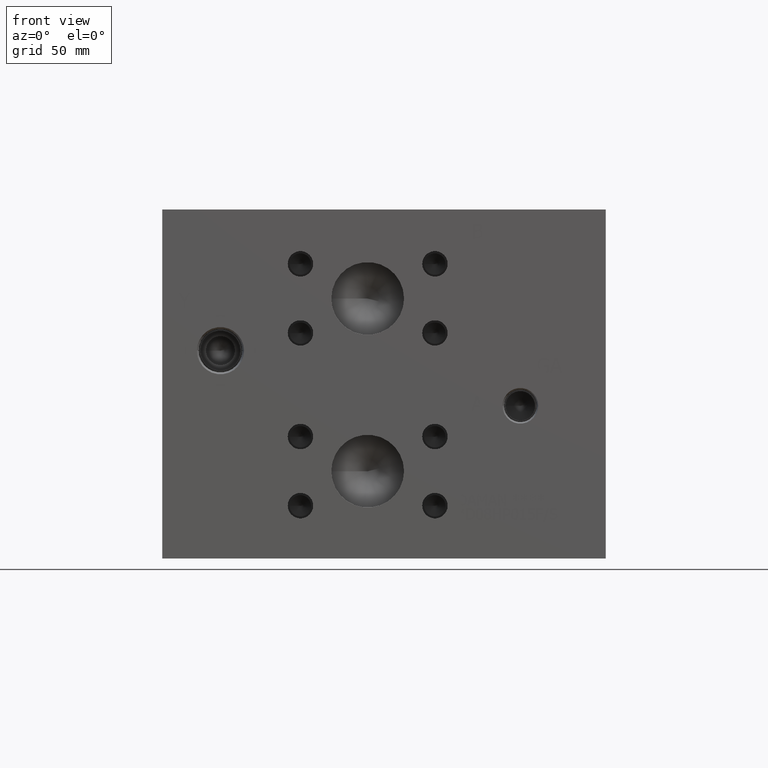
[diagram: clean part render]
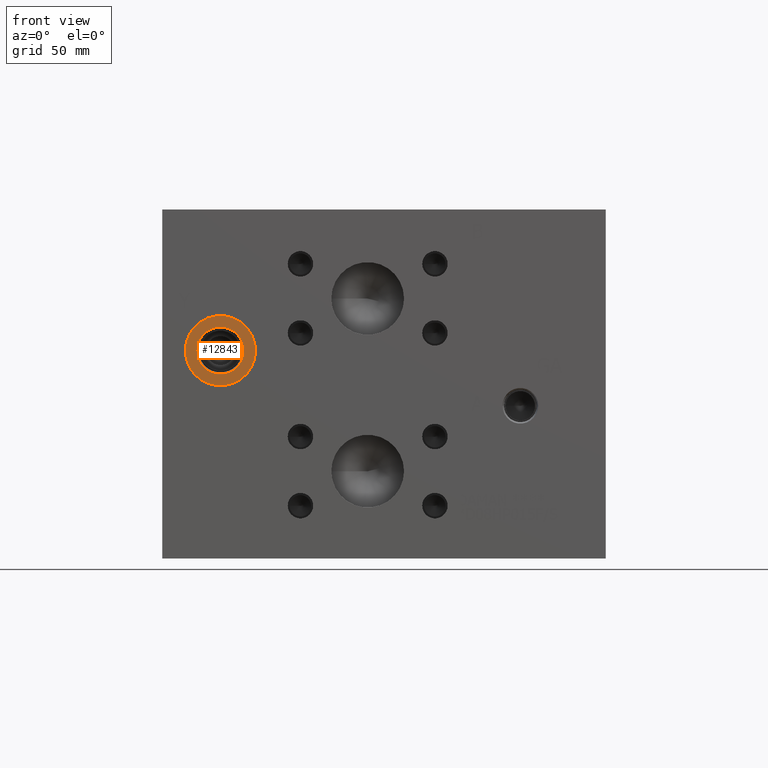
[diagram: same view with one face highlighted and labeled with its STEP entity id]
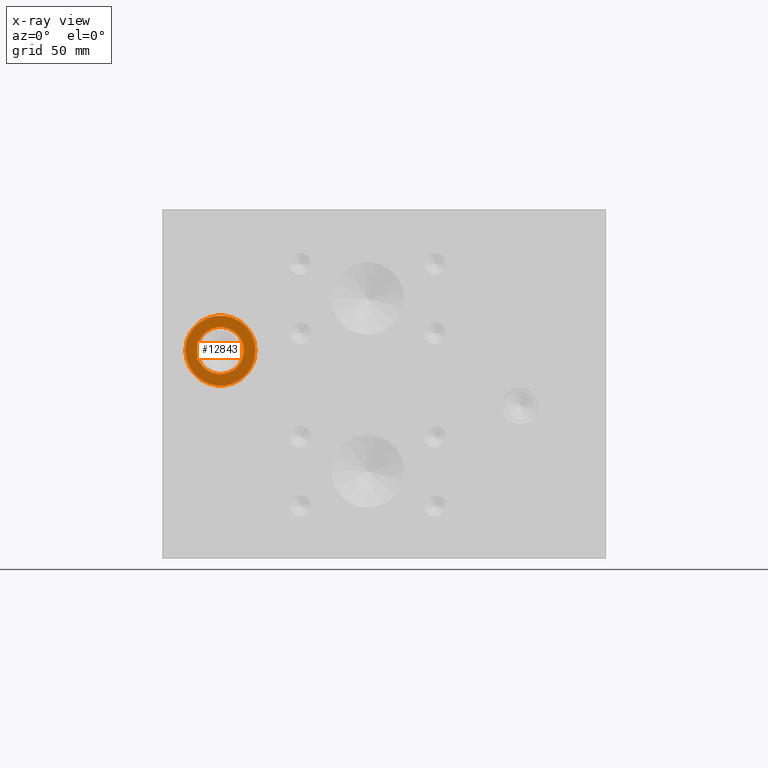
[diagram: x-ray of the same camera — body ghosted, the highlighted face saturated]
A machine part, front view. The second image highlights one B-rep face of the part: STEP entity #12843.
The next image is the same camera in x-ray: the body ghosted, the highlighted face saturated — about 0% of this face is hidden behind the body in this view.
In plain terms, the highlighted planar face has unit normal (0, 1, 0).
Its self-contained STEP definition (entity closure, byte-faithful):
#274=CIRCLE('',#13493,15.3162);
#275=CIRCLE('',#13494,15.3162);
#276=CIRCLE('',#13496,10.2997);
#277=CIRCLE('',#13497,10.2997);
#606=FACE_BOUND('',#2327,.T.);
#1569=FACE_OUTER_BOUND('',#2326,.T.);
#2326=EDGE_LOOP('',(#10644,#10645));
#2327=EDGE_LOOP('',(#10646,#10647));
#5845=VERTEX_POINT('',#21543);
#5846=VERTEX_POINT('',#21545);
#5847=VERTEX_POINT('',#21549);
#5848=VERTEX_POINT('',#21550);
#7545=EDGE_CURVE('',#5845,#5846,#274,.T.);
#7546=EDGE_CURVE('',#5846,#5845,#275,.T.);
#7547=EDGE_CURVE('',#5847,#5848,#276,.T.);
#7548=EDGE_CURVE('',#5848,#5847,#277,.T.);
#10644=ORIENTED_EDGE('',*,*,#7546,.F.);
#10645=ORIENTED_EDGE('',*,*,#7545,.F.);
#10646=ORIENTED_EDGE('',*,*,#7547,.T.);
#10647=ORIENTED_EDGE('',*,*,#7548,.T.);
#11855=PLANE('',#13495);
#12843=ADVANCED_FACE('',(#1569,#606),#11855,.F.);
#13493=AXIS2_PLACEMENT_3D('',#21546,#15849,#15850);
#13494=AXIS2_PLACEMENT_3D('',#21547,#15851,#15852);
#13495=AXIS2_PLACEMENT_3D('',#21548,#15853,#15854);
#13496=AXIS2_PLACEMENT_3D('',#21551,#15855,#15856);
#13497=AXIS2_PLACEMENT_3D('',#21552,#15857,#15858);
#15849=DIRECTION('center_axis',(0.,1.,0.));
#15850=DIRECTION('ref_axis',(1.,0.,0.));
#15851=DIRECTION('center_axis',(0.,1.,0.));
#15852=DIRECTION('ref_axis',(1.,0.,0.));
#15853=DIRECTION('center_axis',(0.,1.,0.));
#15854=DIRECTION('ref_axis',(0.,0.,1.));
#15855=DIRECTION('center_axis',(0.,1.,0.));
#15856=DIRECTION('ref_axis',(1.,0.,0.));
#15857=DIRECTION('center_axis',(0.,1.,0.));
#15858=DIRECTION('ref_axis',(1.,0.,0.));
#21543=CARTESIAN_POINT('',(10.0838,0.7874,90.7542));
#21545=CARTESIAN_POINT('',(40.7162,0.7874,90.7542));
#21546=CARTESIAN_POINT('Origin',(25.4,0.7874,90.7542));
#21547=CARTESIAN_POINT('Origin',(25.4,0.7874,90.7542));
#21548=CARTESIAN_POINT('Origin',(35.6997,0.7874,90.7542));
#21549=CARTESIAN_POINT('',(35.6997,0.7874,90.7542));
#21550=CARTESIAN_POINT('',(15.1003,0.7874,90.7542));
#21551=CARTESIAN_POINT('Origin',(25.4,0.7874,90.7542));
#21552=CARTESIAN_POINT('Origin',(25.4,0.7874,90.7542));